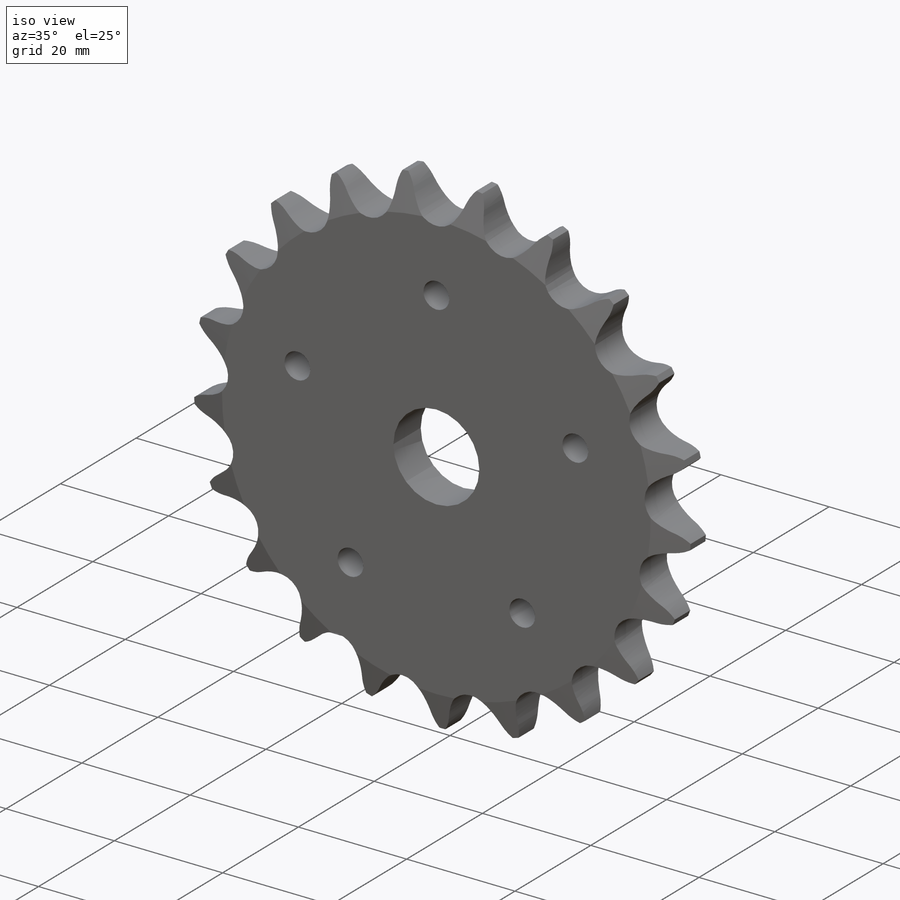
[diagram: iso view]
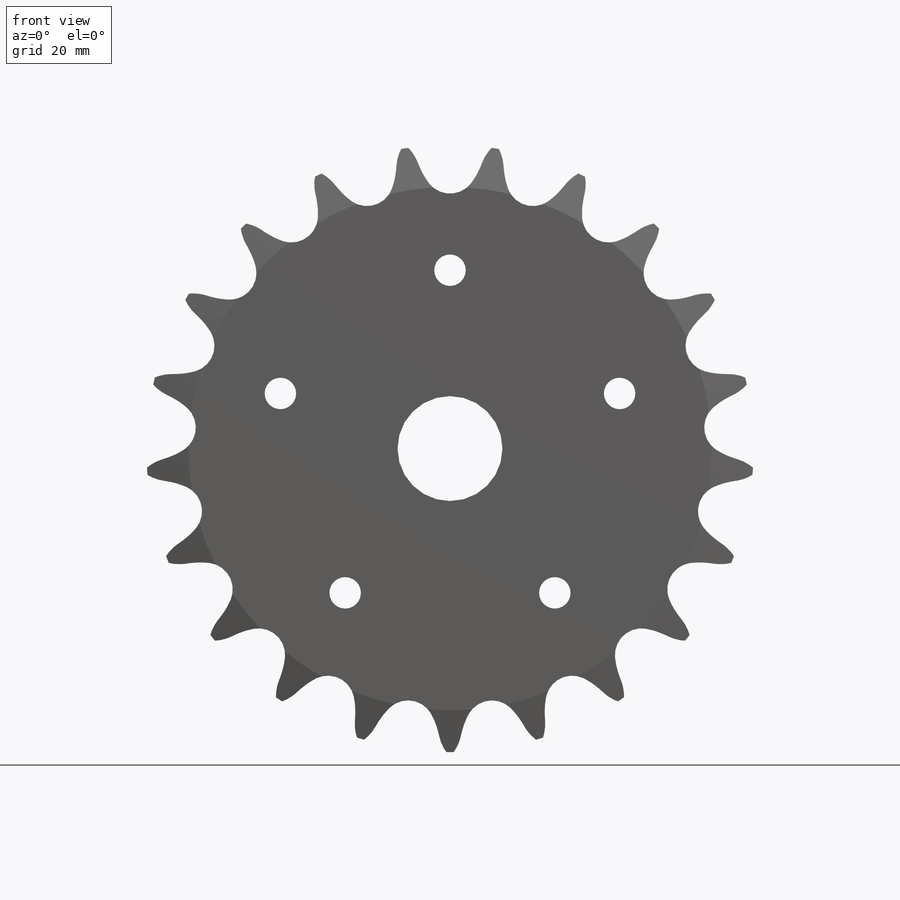
[diagram: front view]
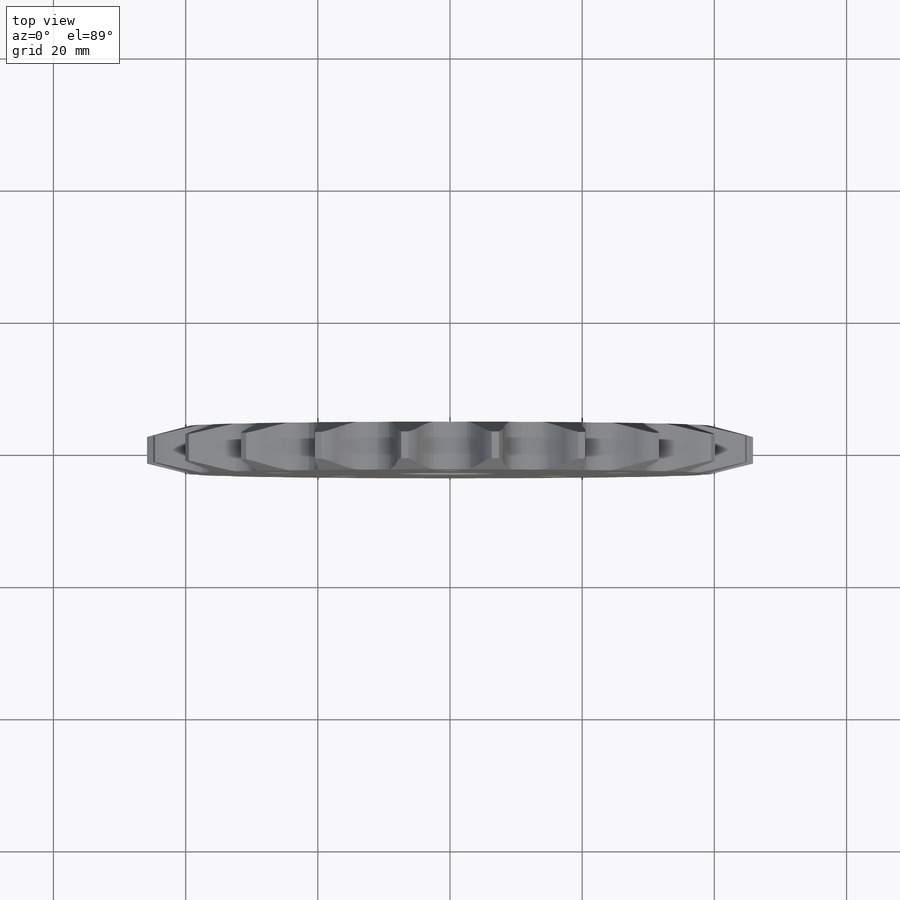
[diagram: top view]
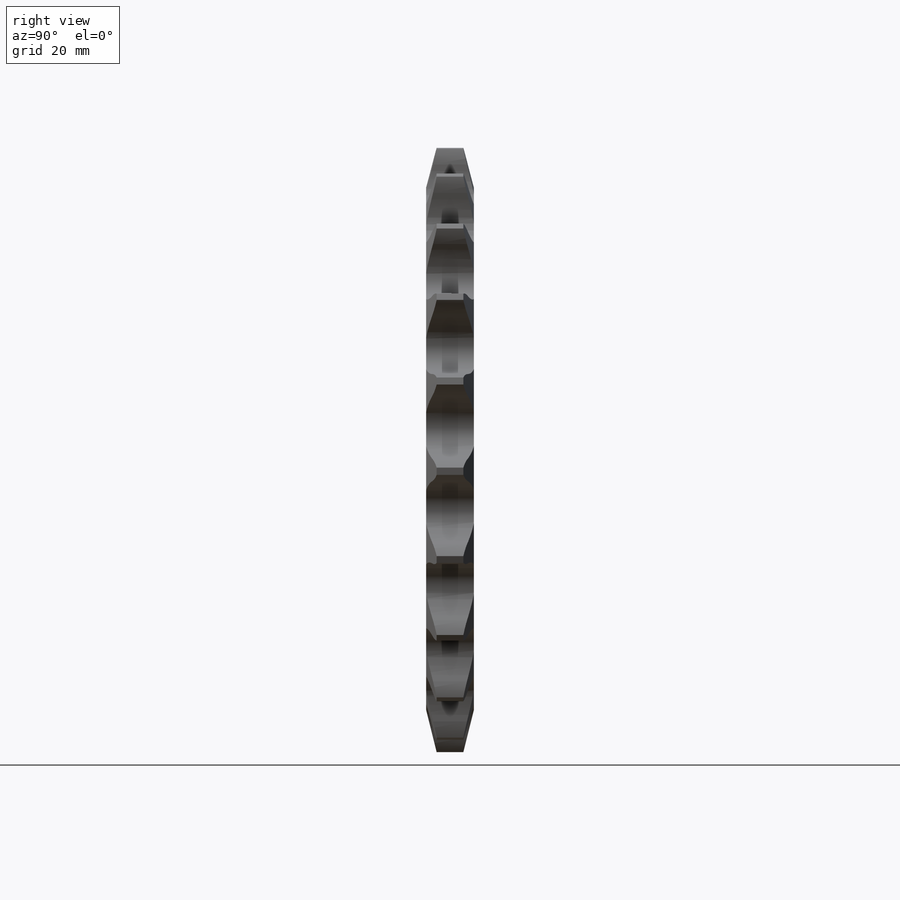
[diagram: right view]
SOLIDWORKS PART (.sldprt)
format: sldprt  version: not decoded by parser v0  size: 1,216,512 bytes
history: native  units: mm
features: sketch x9, cut_extrude x6, pattern_circular x3, revolve x2, material x1 + 1 further entry (+11 scaffold rows collapsed)
feature tree (33):
  scaffold x11  (default folders/planes/origin — collapsed)
  material  "Material <not specified>"
  sketch  "Sprocket-BaseSketch"  dims[Hub Surface=3.6068mm RightSide (1)=1.5875mm RightSide (2)=6.35mm OD=~45.939497mm LeftSide (1)=1.5875mm LeftSide (2)=6.35mm Tooth Width=7.2136mm]
  revolve  "40 (08A) ANSI (ISO) Chain Number, 3.355in P.D."  Angle=360deg
  sketch  "Tooth-Sketch"
  cut_extrude  "Tooth-Cut, Number of teeth: 21"  Depth=25.4mm
  pattern_circular  "Tooth Pattern, 21 / 21"  Count=21 Angle=17.142857deg
  sketch  "Sketch3"  dims[Hub Mounting=3.6068mm Hub OD=34.925mm Hub Width=18.1864mm]
  revolve  "Hub-Revolve1"  Angle=360deg
  sketch  "Sketch4"  dims[D1=15.875mm]
  cut_extrude  "Cut-Extrude1"  [1 undecoded]
  sketch  "Sketch5"  dims[D1=~91.878995mm]
  sketch  "Sketch6"  dims[D1=~59.818113mm D2=152.4mm]
  cut_extrude  "Cut-Extrude2"  Depth=152.4mm
  sketch  "Sketch7"  dims[D1=46.0375mm]
  cut_extrude  "Cut-Extrude3"  Depth=50.8mm
  sketch  "Sketch8"  dims[c1.D1=3.175mm c1.D2=~32.033899mm c2.D2=~30.95625mm]
  cut_extrude  "Cut-Extrude4"  [1 undecoded]
  "Axis2"
  pattern_circular  "CirPattern1"  Count=5 Angle=360deg
  sketch  "Sketch9"  dims[D1=4.7625mm D2=26.9875mm]
  cut_extrude  "Cut-Extrude5"  [1 undecoded]
  pattern_circular  "CirPattern2"  Count=5 Angle=360deg
decode coverage: 16 of 20 modeling features carry decoded parameters; 1 rows unclassified (native names shown)
note: ~ marks probable driven/reference dimensions
note: 3 parameter values undecoded
summary: no parameter record found for 3 features
note: suppression state not decoded; provenance and decode notes live in map.json
